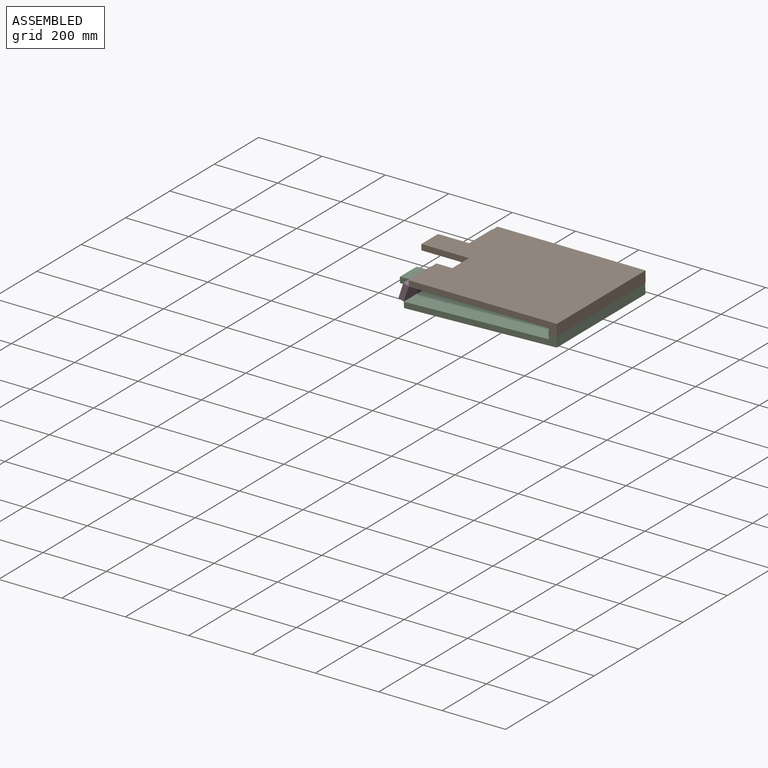
[diagram: assembled view]
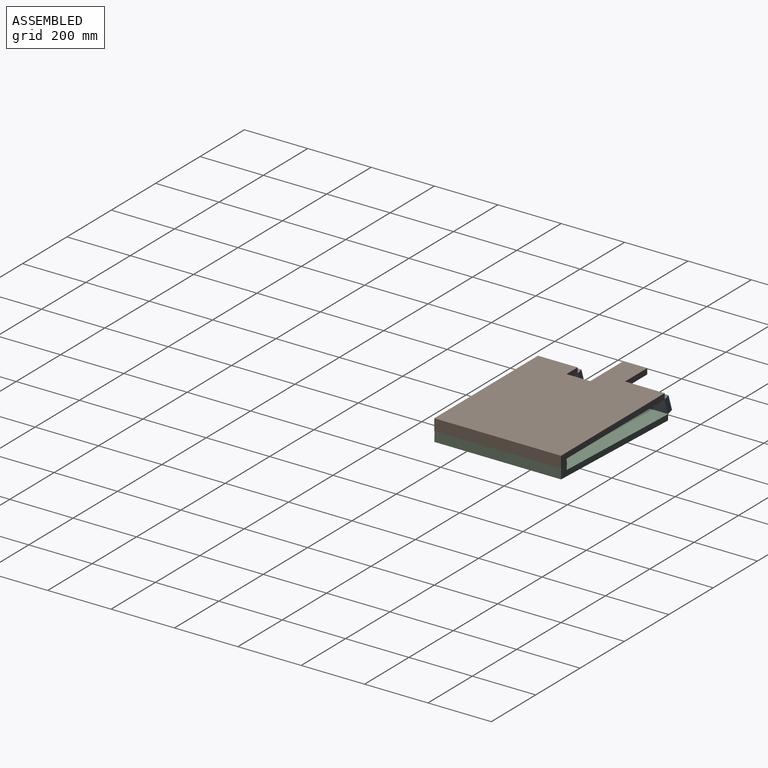
[diagram: assembled view, second angle]
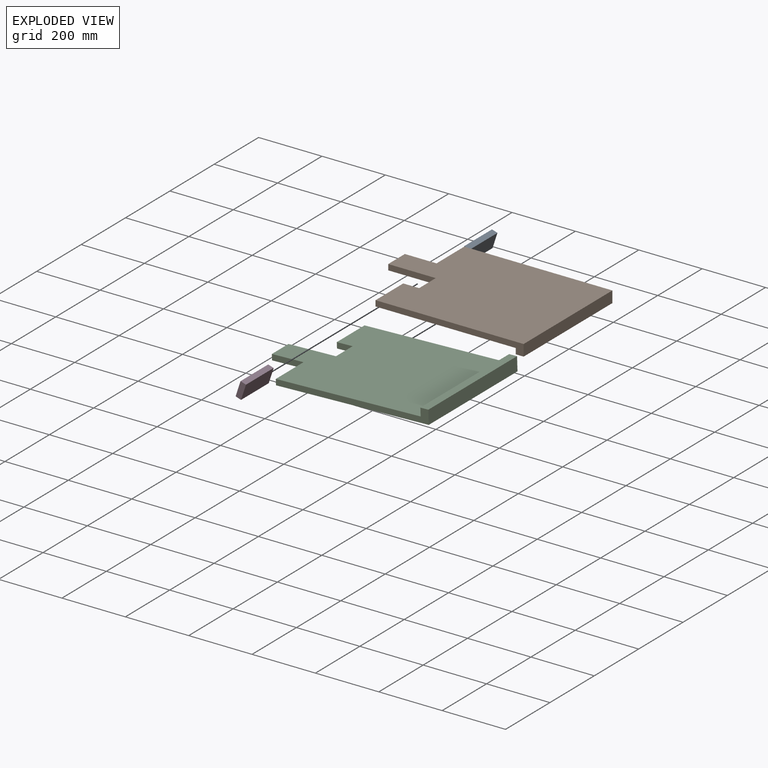
[diagram: exploded view]
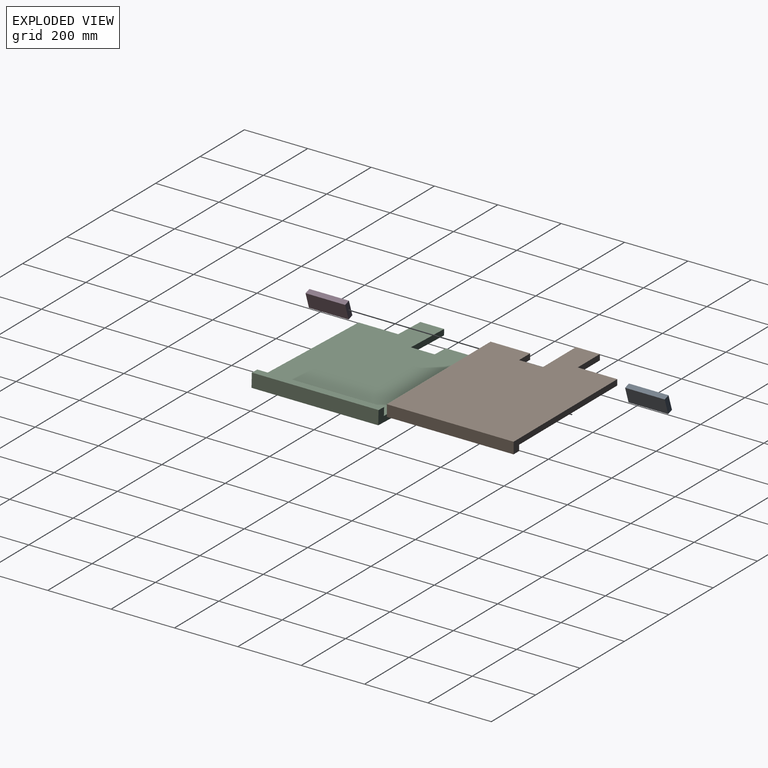
[diagram: exploded view, second angle]
ASSEMBLY  parts=4 mates=4
PART A: 6 faces, bbox 50x125x18 mm
  f0: plane 125x18mm, normal (-1,0,0), area 2250mm2, adj f1,f3,f4,f5
  f1: plane 50x18mm, normal (0,-1,0), area 900mm2, adj f0,f2,f4,f5
  f2: plane 125x18mm, normal (1,0,0), area 2250mm2, adj f1,f3,f4,f5
  f3: plane 50x18mm, normal (0,1,0), area 900mm2, adj f0,f2,f4,f5
  f4: plane 125x50mm, normal (0,0,1), area 6250mm2, adj f0,f1,f2,f3
  f5: plane 125x50mm, normal (0,0,-1), area 6250mm2, adj f0,f1,f2,f3
PART B: 14 faces, bbox 567.5x400x36 mm
  f0: plane 125x18mm, normal (-1,0,0), area 2250mm2, adj f1,f9,f10,f11
  f1: plane 467.5x36mm, normal (0,-1,0), area 8865mm2, adj f0,f2,f10,f11,f12,f13
  f2: plane 400x36mm, normal (1,0,0), area 14400mm2, adj f1,f3,f10,f13
  f3: plane 467.5x36mm, normal (0,1,0), area 8865mm2, adj f2,f4,f10,f11,f12,f13
  f4: plane 125x18mm, normal (-1,0,0), area 2250mm2, adj f3,f5,f10,f11
  f5: plane 100x18mm, normal (0,1,0), area 1800mm2, adj f4,f6,f10,f11
  f6: plane 75x18mm, normal (-1,0,0), area 1350mm2, adj f5,f7,f10,f11
  f7: plane 150x18mm, normal (0,-1,0), area 2700mm2, adj f6,f8,f10,f11
  f8: plane 75x18mm, normal (-1,0,0), area 1350mm2, adj f7,f9,f10,f11
  f9: plane 50x18mm, normal (0,1,0), area 900mm2, adj f0,f8,f10,f11
  f10: plane 567.5x400mm, normal (0,0,1), area 190750mm2, adj f0,f1,f2,f3,f4,f5,f6,f7
  f11: plane 542.5x400mm, normal (0,0,-1), area 180750mm2, adj f0,f1,f3,f4,f5,f6,f7,f8
  f12: plane 400x18mm, normal (-1,0,0), area 7200mm2, adj f1,f3,f11,f13
  f13: plane 400x25mm, normal (0,0,-1), area 10000mm2, adj f1,f2,f3,f12
PART C: 14 faces, bbox 582.5x400x43 mm
  f0: plane 557.5x400mm, normal (0,0,-1), area 186750mm2, adj f2,f3,f4,f5,f6,f7,f8,f9
  f1: plane 400x43mm, normal (-1,0,0), area 17200mm2, adj f2,f10,f11,f13
  f2: plane 482.5x43mm, normal (0,-1,0), area 9310mm2, adj f0,f1,f3,f11,f12,f13
  f3: plane 125x18mm, normal (1,0,0), area 2250mm2, adj f0,f2,f4,f11
  f4: plane 100x18mm, normal (0,-1,0), area 1800mm2, adj f0,f3,f5,f11
  f5: plane 75x18mm, normal (1,0,0), area 1350mm2, adj f0,f4,f6,f11
  f6: plane 150x18mm, normal (0,1,0), area 2700mm2, adj f0,f5,f7,f11
  f7: plane 75x18mm, normal (1,0,0), area 1350mm2, adj f0,f6,f8,f11
  f8: plane 50x18mm, normal (0,-1,0), area 900mm2, adj f0,f7,f9,f11
  f9: plane 125x18mm, normal (1,0,0), area 2250mm2, adj f0,f8,f10,f11
  f10: plane 482.5x43mm, normal (0,1,0), area 9310mm2, adj f0,f1,f9,f11,f12,f13
  f11: plane 582.5x400mm, normal (0,0,1), area 196750mm2, adj f1,f2,f3,f4,f5,f6,f7,f8
  f12: plane 400x25mm, normal (1,0,0), area 10000mm2, adj f0,f2,f10,f13
  f13: plane 400x25mm, normal (0,0,-1), area 10000mm2, adj f1,f2,f10,f12
PART D: 6 faces, bbox 50x125x18 mm
  f0: plane 125x18mm, normal (-1,0,0), area 2250mm2, adj f1,f3,f4,f5
  f1: plane 50x18mm, normal (0,-1,0), area 900mm2, adj f0,f2,f4,f5
  f2: plane 125x18mm, normal (1,0,0), area 2250mm2, adj f1,f3,f4,f5
  f3: plane 50x18mm, normal (0,1,0), area 900mm2, adj f0,f2,f4,f5
  f4: plane 125x50mm, normal (0,0,1), area 6250mm2, adj f0,f1,f2,f3
  f5: plane 125x50mm, normal (0,0,-1), area 6250mm2, adj f0,f1,f2,f3
PLACE A rot(axis=(0,-1,0),71.9deg) t=(62.95,0,-118.35)mm
PLACE B t=(-28.37,0,7.59)mm fixed
PLACE C rot(axis=(0,1,0),178.1deg) t=(171.04,0,-37.2)mm
PLACE D rot(axis=(0,-1,0),71.9deg) t=(62.95,0,-118.35)mm
MATE revolute A.f3 <-> C.f10  axis (0,1,0) through (88.59,300,-39.93)mm
MATE revolute D.f1 <-> B.f1  axis (0,1,0) through (104.13,-100,7.59)mm
MATE revolute B.f3 <-> A.f3  axis (0,1,0) through (104.13,300,7.59)mm
MATE revolute C.f2 <-> D.f1  axis (0,1,0) through (88.59,-100,-39.93)mm
